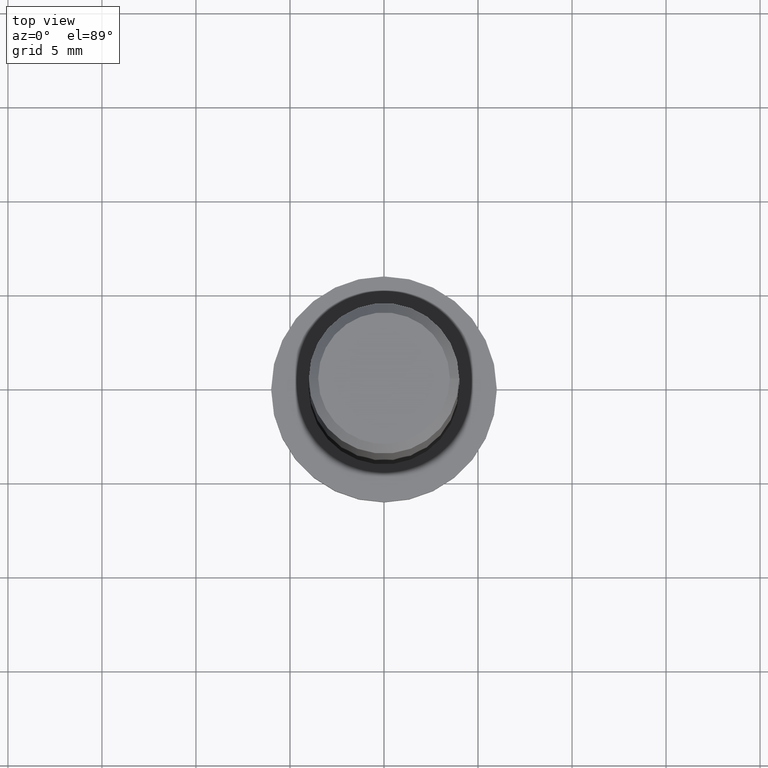
[diagram: clean part render]
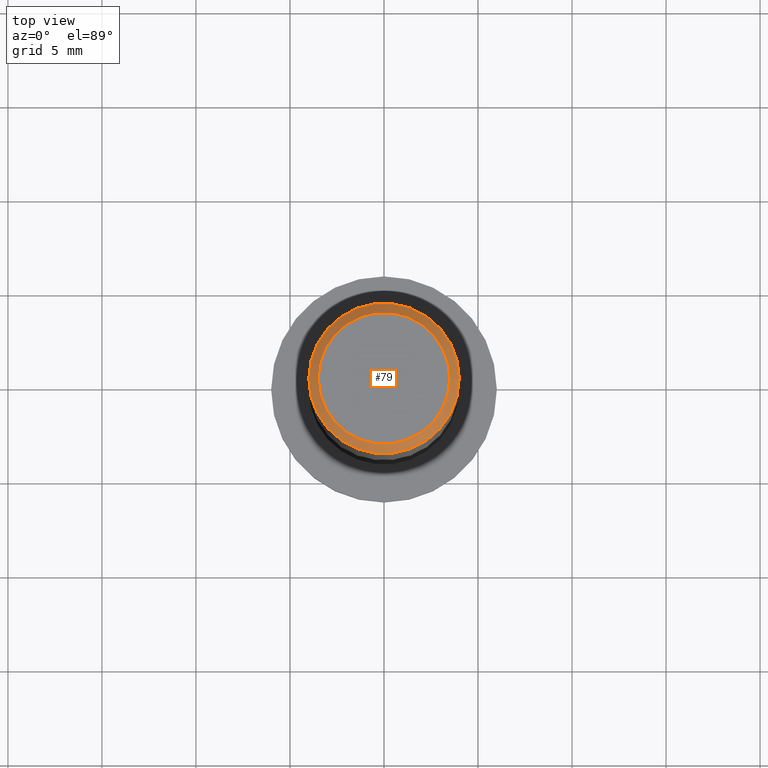
[diagram: same view with one face highlighted and labeled with its STEP entity id]
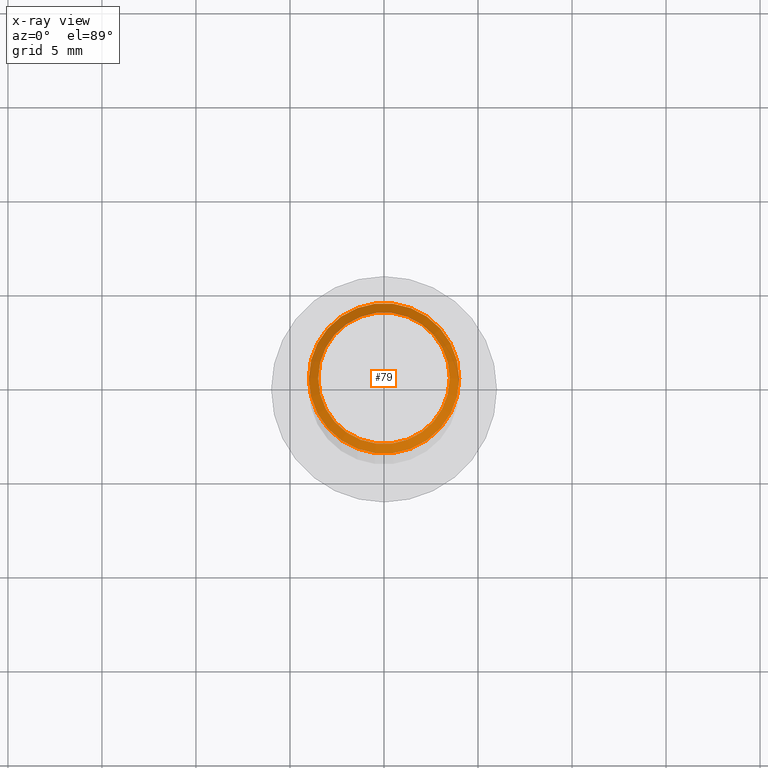
[diagram: x-ray of the same camera — body ghosted, the highlighted face saturated]
A machine part, top view. The second image highlights one B-rep face of the part: STEP entity #79.
The next image is the same camera in x-ray: the body ghosted, the highlighted face saturated — about 0% of this face is hidden behind the body in this view.
In plain terms, the highlighted conical surface has half-angle 45 deg.
Its self-contained STEP definition (entity closure, byte-faithful):
#15=CONICAL_SURFACE('',#91,3.75,45.0000000000001);
#23=FACE_BOUND('',#39,.T.);
#29=FACE_OUTER_BOUND('',#38,.T.);
#38=EDGE_LOOP('',(#68));
#39=EDGE_LOOP('',(#69));
#48=CIRCLE('',#92,4.);
#49=CIRCLE('',#93,3.5);
#54=VERTEX_POINT('',#137);
#55=VERTEX_POINT('',#139);
#60=EDGE_CURVE('',#54,#54,#48,.T.);
#61=EDGE_CURVE('',#55,#55,#49,.T.);
#68=ORIENTED_EDGE('',*,*,#60,.T.);
#69=ORIENTED_EDGE('',*,*,#61,.T.);
#79=ADVANCED_FACE('',(#29,#23),#15,.T.);
#91=AXIS2_PLACEMENT_3D('',#136,#112,#113);
#92=AXIS2_PLACEMENT_3D('',#138,#114,#115);
#93=AXIS2_PLACEMENT_3D('',#140,#116,#117);
#112=DIRECTION('center_axis',(0.,0.,-1.));
#113=DIRECTION('ref_axis',(-1.,0.,0.));
#114=DIRECTION('center_axis',(0.,0.,1.));
#115=DIRECTION('ref_axis',(-1.,0.,0.));
#116=DIRECTION('center_axis',(0.,0.,-1.));
#117=DIRECTION('ref_axis',(-1.,0.,0.));
#136=CARTESIAN_POINT('Origin',(0.,0.,34.));
#137=CARTESIAN_POINT('',(4.,4.89858719658941E-16,33.75));
#138=CARTESIAN_POINT('Origin',(0.,0.,33.75));
#139=CARTESIAN_POINT('',(3.5,-4.28626379701574E-16,34.25));
#140=CARTESIAN_POINT('Origin',(0.,0.,34.25));